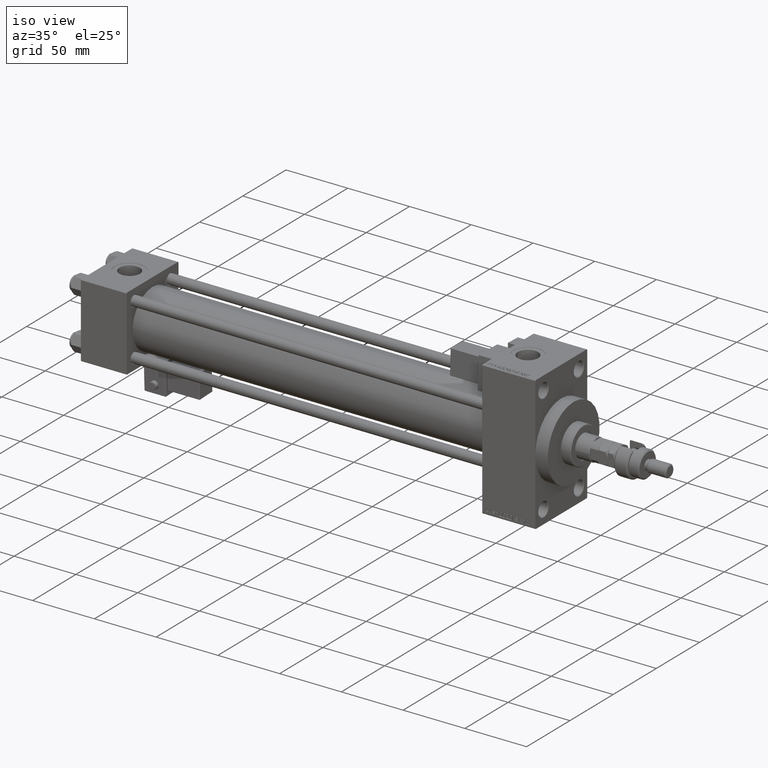
[diagram: clean part render]
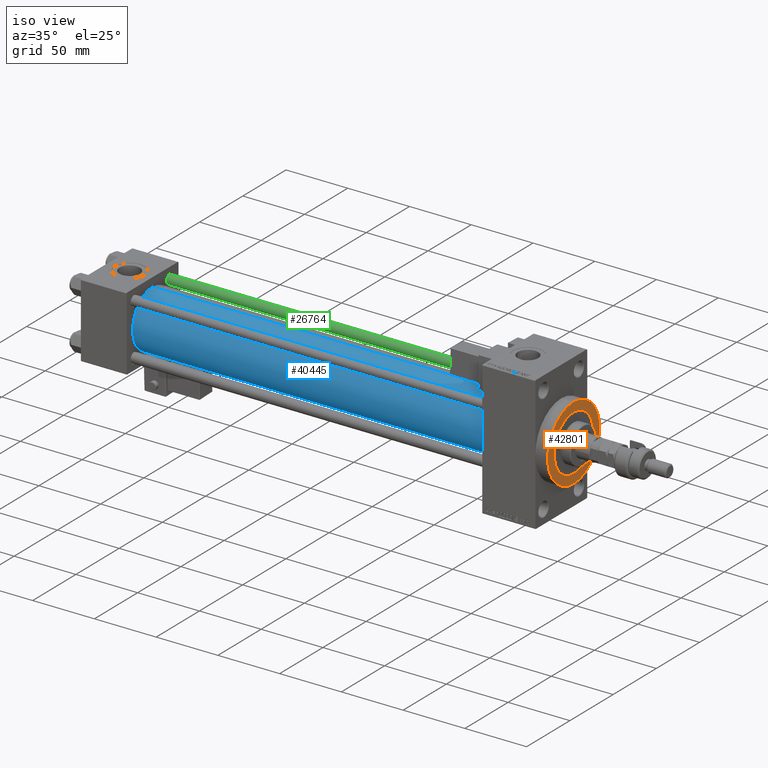
[diagram: same view with three faces highlighted in distinct colors, each labeled with its STEP entity id]
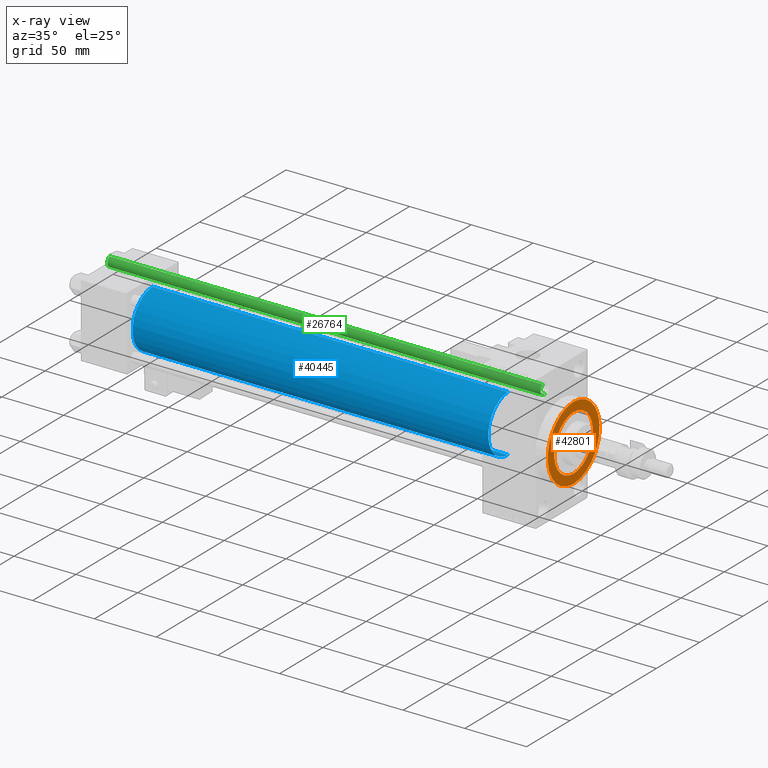
[diagram: x-ray of the same camera — body ghosted, the three highlighted faces saturated]
A machine part, iso view with three faces highlighted in distinct colors.
The next image is the same camera in x-ray (body ghosted, the three faces saturated) — at least one of them is partly hidden behind the body in this view.
Their STEP definitions:

[orange] entity #42801 — the highlighted planar face has unit normal (1, 0, 0).
#703 = CIRCLE ( 'NONE', #54175, 22.50000000000000355 ) ;
#1557 = EDGE_CURVE ( 'NONE', #11247, #46714, #703, .T. ) ;
#2401 = CARTESIAN_POINT ( 'NONE',  ( 377.9999999999999432, 3.673940397442059178E-15, -30.00000000000000000 ) ) ;
#2753 = EDGE_CURVE ( 'NONE', #46714, #11247, #39317, .T. ) ;
#4261 = AXIS2_PLACEMENT_3D ( 'NONE', #9045, #21652, #6001 ) ;
#6001 = DIRECTION ( 'NONE',  ( 0.000000000000000000, 0.000000000000000000, -1.000000000000000000 ) ) ;
#8032 = DIRECTION ( 'NONE',  ( 1.000000000000000000, 0.000000000000000000, 0.000000000000000000 ) ) ;
#8637 = AXIS2_PLACEMENT_3D ( 'NONE', #39232, #30994, #52136 ) ;
#9045 = CARTESIAN_POINT ( 'NONE',  ( 377.9999999999999432, 0.000000000000000000, 0.000000000000000000 ) ) ;
#11247 = VERTEX_POINT ( 'NONE', #28361 ) ;
#12941 = ORIENTED_EDGE ( 'NONE', *, *, #1557, .F. ) ;
#14124 = DIRECTION ( 'NONE',  ( 1.000000000000000000, 0.000000000000000000, 0.000000000000000000 ) ) ;
#14785 = AXIS2_PLACEMENT_3D ( 'NONE', #52214, #18983, #48094 ) ;
#15597 = CIRCLE ( 'NONE', #39273, 30.00000000000000000 ) ;
#17926 = ORIENTED_EDGE ( 'NONE', *, *, #46401, .T. ) ;
#18708 = FACE_OUTER_BOUND ( 'NONE', #36121, .T. ) ;
#18983 = DIRECTION ( 'NONE',  ( 1.000000000000000000, 0.000000000000000000, 0.000000000000000000 ) ) ;
#20928 = CIRCLE ( 'NONE', #4261, 30.00000000000000000 ) ;
#21652 = DIRECTION ( 'NONE',  ( 1.000000000000000000, 0.000000000000000000, 0.000000000000000000 ) ) ;
#22839 = VERTEX_POINT ( 'NONE', #2401 ) ;
#26115 = ORIENTED_EDGE ( 'NONE', *, *, #2753, .F. ) ;
#26412 = PLANE ( 'NONE',  #14785 ) ;
#26477 = DIRECTION ( 'NONE',  ( 0.000000000000000000, 0.000000000000000000, -1.000000000000000000 ) ) ;
#27292 = CARTESIAN_POINT ( 'NONE',  ( 377.9999999999999432, 0.000000000000000000, 0.000000000000000000 ) ) ;
#28361 = CARTESIAN_POINT ( 'NONE',  ( 377.9999999999999432, 0.000000000000000000, -22.50000000000000355 ) ) ;
#29431 = DIRECTION ( 'NONE',  ( 0.000000000000000000, 0.000000000000000000, -1.000000000000000000 ) ) ;
#30994 = DIRECTION ( 'NONE',  ( 1.000000000000000000, 0.000000000000000000, 0.000000000000000000 ) ) ;
#32755 = CARTESIAN_POINT ( 'NONE',  ( 377.9999999999999432, 2.755455298081545172E-15, 22.50000000000000355 ) ) ;
#36121 = EDGE_LOOP ( 'NONE', ( #17926, #45821 ) ) ;
#37106 = EDGE_LOOP ( 'NONE', ( #12941, #26115 ) ) ;
#39232 = CARTESIAN_POINT ( 'NONE',  ( 377.9999999999999432, 0.000000000000000000, 0.000000000000000000 ) ) ;
#39273 = AXIS2_PLACEMENT_3D ( 'NONE', #27292, #14124, #26477 ) ;
#39317 = CIRCLE ( 'NONE', #8637, 22.50000000000000355 ) ;
#41513 = EDGE_CURVE ( 'NONE', #22839, #51244, #15597, .T. ) ;
#42801 = ADVANCED_FACE ( 'NONE', ( #52483, #18708 ), #26412, .T. ) ;
#45821 = ORIENTED_EDGE ( 'NONE', *, *, #41513, .T. ) ;
#46401 = EDGE_CURVE ( 'NONE', #51244, #22839, #20928, .T. ) ;
#46714 = VERTEX_POINT ( 'NONE', #32755 ) ;
#47267 = CARTESIAN_POINT ( 'NONE',  ( 377.9999999999999432, 0.000000000000000000, 30.00000000000000000 ) ) ;
#48094 = DIRECTION ( 'NONE',  ( 0.000000000000000000, 0.000000000000000000, -1.000000000000000000 ) ) ;
#50297 = CARTESIAN_POINT ( 'NONE',  ( 377.9999999999999432, 0.000000000000000000, 0.000000000000000000 ) ) ;
#51244 = VERTEX_POINT ( 'NONE', #47267 ) ;
#52136 = DIRECTION ( 'NONE',  ( 0.000000000000000000, 0.000000000000000000, -1.000000000000000000 ) ) ;
#52214 = CARTESIAN_POINT ( 'NONE',  ( 377.9999999999999432, 0.000000000000000000, 0.000000000000000000 ) ) ;
#52483 = FACE_BOUND ( 'NONE', #37106, .T. ) ;
#54175 = AXIS2_PLACEMENT_3D ( 'NONE', #50297, #8032, #29431 ) ;

[blue] entity #40445 — the highlighted cylindrical surface (edge-blend (fillet) strip) has radius 23 mm, axis along (-1, -0, -0).
#730 = DIRECTION ( 'NONE',  ( 0.000000000000000000, 0.000000000000000000, 1.000000000000000000 ) ) ;
#1031 = EDGE_LOOP ( 'NONE', ( #3602, #14692, #19082, #31368 ) ) ;
#3249 = DIRECTION ( 'NONE',  ( -1.000000000000000000, -0.000000000000000000, -0.000000000000000000 ) ) ;
#3602 = ORIENTED_EDGE ( 'NONE', *, *, #38473, .F. ) ;
#11616 = VECTOR ( 'NONE', #3249, 1000.000000000000000 ) ;
#14692 = ORIENTED_EDGE ( 'NONE', *, *, #19253, .F. ) ;
#16708 = DIRECTION ( 'NONE',  ( -1.000000000000000000, -0.000000000000000000, -0.000000000000000000 ) ) ;
#19082 = ORIENTED_EDGE ( 'NONE', *, *, #54266, .T. ) ;
#19253 = EDGE_CURVE ( 'NONE', #42065, #31298, #19597, .T. ) ;
#19313 = DIRECTION ( 'NONE',  ( 0.000000000000000000, 0.000000000000000000, -1.000000000000000000 ) ) ;
#19597 = CIRCLE ( 'NONE', #45040, 23.00000000000000000 ) ;
#20729 = CIRCLE ( 'NONE', #26009, 23.00000000000000000 ) ;
#21056 = FACE_OUTER_BOUND ( 'NONE', #1031, .T. ) ;
#22936 = CARTESIAN_POINT ( 'NONE',  ( 324.9999999999999432, 2.146024240737016609E-16, -23.00000000000000000 ) ) ;
#22971 = VERTEX_POINT ( 'NONE', #27801 ) ;
#26009 = AXIS2_PLACEMENT_3D ( 'NONE', #29744, #30005, #38252 ) ;
#27801 = CARTESIAN_POINT ( 'NONE',  ( 36.99999999999997868, -2.602085213965210642E-15, 23.00000000000000000 ) ) ;
#28437 = EDGE_CURVE ( 'NONE', #22971, #32008, #20729, .T. ) ;
#29068 = CARTESIAN_POINT ( 'NONE',  ( 324.9999999999999432, 2.146024240737016609E-16, -23.00000000000000000 ) ) ;
#29744 = CARTESIAN_POINT ( 'NONE',  ( 36.99999999999997868, -2.602085213965210642E-15, 0.000000000000000000 ) ) ;
#30005 = DIRECTION ( 'NONE',  ( 1.000000000000000000, -0.000000000000000000, 0.000000000000000000 ) ) ;
#31298 = VERTEX_POINT ( 'NONE', #22936 ) ;
#31368 = ORIENTED_EDGE ( 'NONE', *, *, #28437, .T. ) ;
#32008 = VERTEX_POINT ( 'NONE', #40649 ) ;
#34837 = AXIS2_PLACEMENT_3D ( 'NONE', #37534, #46043, #730 ) ;
#37534 = CARTESIAN_POINT ( 'NONE',  ( 324.9999999999999432, -2.602085213965210642E-15, 0.000000000000000000 ) ) ;
#37578 = LINE ( 'NONE', #29068, #42608 ) ;
#38252 = DIRECTION ( 'NONE',  ( 0.000000000000000000, 0.000000000000000000, 1.000000000000000000 ) ) ;
#38354 = CYLINDRICAL_SURFACE ( 'NONE', #34837, 23.00000000000000000 ) ;
#38473 = EDGE_CURVE ( 'NONE', #31298, #32008, #37578, .T. ) ;
#39925 = CARTESIAN_POINT ( 'NONE',  ( 324.9999999999999432, -2.602085213965210642E-15, 0.000000000000000000 ) ) ;
#40445 = ADVANCED_FACE ( 'NONE', ( #21056 ), #38354, .T. ) ;
#40649 = CARTESIAN_POINT ( 'NONE',  ( 36.99999999999997868, 2.146024240737016609E-16, -23.00000000000000000 ) ) ;
#41152 = CARTESIAN_POINT ( 'NONE',  ( 324.9999999999999432, -2.602085213965210642E-15, 23.00000000000000000 ) ) ;
#41687 = LINE ( 'NONE', #41152, #11616 ) ;
#42065 = VERTEX_POINT ( 'NONE', #47746 ) ;
#42608 = VECTOR ( 'NONE', #16708, 1000.000000000000000 ) ;
#44571 = DIRECTION ( 'NONE',  ( 1.000000000000000000, 0.000000000000000000, 0.000000000000000000 ) ) ;
#45040 = AXIS2_PLACEMENT_3D ( 'NONE', #39925, #44571, #19313 ) ;
#46043 = DIRECTION ( 'NONE',  ( -1.000000000000000000, -0.000000000000000000, -0.000000000000000000 ) ) ;
#47746 = CARTESIAN_POINT ( 'NONE',  ( 324.9999999999999432, -2.602085213965210642E-15, 23.00000000000000000 ) ) ;
#54266 = EDGE_CURVE ( 'NONE', #42065, #22971, #41687, .T. ) ;

[green] entity #26764 — the highlighted cylindrical surface (edge-blend (fillet) strip) has radius 4 mm, axis along (-1, -0, 0).
#872 = LINE ( 'NONE', #31061, #10813 ) ;
#1042 = VERTEX_POINT ( 'NONE', #9571 ) ;
#2445 = LINE ( 'NONE', #15883, #35041 ) ;
#4508 = DIRECTION ( 'NONE',  ( 1.000000000000000000, 0.000000000000000000, 0.000000000000000000 ) ) ;
#6306 = VERTEX_POINT ( 'NONE', #47964 ) ;
#7141 = ORIENTED_EDGE ( 'NONE', *, *, #10793, .T. ) ;
#8228 = CARTESIAN_POINT ( 'NONE',  ( 0.000000000000000000, 0.000000000000000000, 351.5000000000000000 ) ) ;
#9571 = CARTESIAN_POINT ( 'NONE',  ( 4.000000000000000000, 4.898587196589412829E-16, 0.5000000000000004441 ) ) ;
#10793 = EDGE_CURVE ( 'NONE', #6306, #48671, #51672, .T. ) ;
#10813 = VECTOR ( 'NONE', #42877, 1000.000000000000000 ) ;
#15187 = ORIENTED_EDGE ( 'NONE', *, *, #19466, .T. ) ;
#15883 = CARTESIAN_POINT ( 'NONE',  ( 4.000000000000000000, 4.898587196589412829E-16, 352.0000000000000000 ) ) ;
#17486 = AXIS2_PLACEMENT_3D ( 'NONE', #8228, #21925, #34295 ) ;
#18259 = CIRCLE ( 'NONE', #25274, 4.000000000000000000 ) ;
#19466 = EDGE_CURVE ( 'NONE', #48671, #47026, #872, .T. ) ;
#21831 = CARTESIAN_POINT ( 'NONE',  ( -4.000000000000000000, 0.000000000000000000, 351.5000000000000000 ) ) ;
#21925 = DIRECTION ( 'NONE',  ( 0.000000000000000000, 0.000000000000000000, -1.000000000000000000 ) ) ;
#25274 = AXIS2_PLACEMENT_3D ( 'NONE', #32062, #48810, #4508 ) ;
#26764 = ADVANCED_FACE ( 'NONE', ( #46066 ), #33167, .T. ) ;
#28581 = AXIS2_PLACEMENT_3D ( 'NONE', #46334, #41944, #37821 ) ;
#31061 = CARTESIAN_POINT ( 'NONE',  ( -4.000000000000000000, 0.000000000000000000, 352.0000000000000000 ) ) ;
#32062 = CARTESIAN_POINT ( 'NONE',  ( 0.000000000000000000, 0.000000000000000000, 0.5000000000000004441 ) ) ;
#33167 = CYLINDRICAL_SURFACE ( 'NONE', #28581, 4.000000000000000000 ) ;
#34295 = DIRECTION ( 'NONE',  ( 1.000000000000000000, 0.000000000000000000, 0.000000000000000000 ) ) ;
#34348 = ORIENTED_EDGE ( 'NONE', *, *, #45613, .T. ) ;
#35041 = VECTOR ( 'NONE', #49386, 1000.000000000000000 ) ;
#36819 = CARTESIAN_POINT ( 'NONE',  ( -4.000000000000000000, 0.000000000000000000, 0.5000000000000004441 ) ) ;
#37821 = DIRECTION ( 'NONE',  ( -1.000000000000000000, 0.000000000000000000, 0.000000000000000000 ) ) ;
#40586 = ORIENTED_EDGE ( 'NONE', *, *, #48303, .F. ) ;
#41944 = DIRECTION ( 'NONE',  ( -0.000000000000000000, -0.000000000000000000, -1.000000000000000000 ) ) ;
#42877 = DIRECTION ( 'NONE',  ( -0.000000000000000000, -0.000000000000000000, -1.000000000000000000 ) ) ;
#44221 = EDGE_LOOP ( 'NONE', ( #40586, #7141, #15187, #34348 ) ) ;
#45613 = EDGE_CURVE ( 'NONE', #47026, #1042, #18259, .T. ) ;
#46066 = FACE_OUTER_BOUND ( 'NONE', #44221, .T. ) ;
#46334 = CARTESIAN_POINT ( 'NONE',  ( 0.000000000000000000, 0.000000000000000000, 352.0000000000000000 ) ) ;
#47026 = VERTEX_POINT ( 'NONE', #36819 ) ;
#47964 = CARTESIAN_POINT ( 'NONE',  ( 4.000000000000000000, 4.898587196589412829E-16, 351.5000000000000000 ) ) ;
#48303 = EDGE_CURVE ( 'NONE', #6306, #1042, #2445, .T. ) ;
#48671 = VERTEX_POINT ( 'NONE', #21831 ) ;
#48810 = DIRECTION ( 'NONE',  ( -0.000000000000000000, -0.000000000000000000, 1.000000000000000000 ) ) ;
#49386 = DIRECTION ( 'NONE',  ( -0.000000000000000000, -0.000000000000000000, -1.000000000000000000 ) ) ;
#51672 = CIRCLE ( 'NONE', #17486, 4.000000000000000000 ) ;